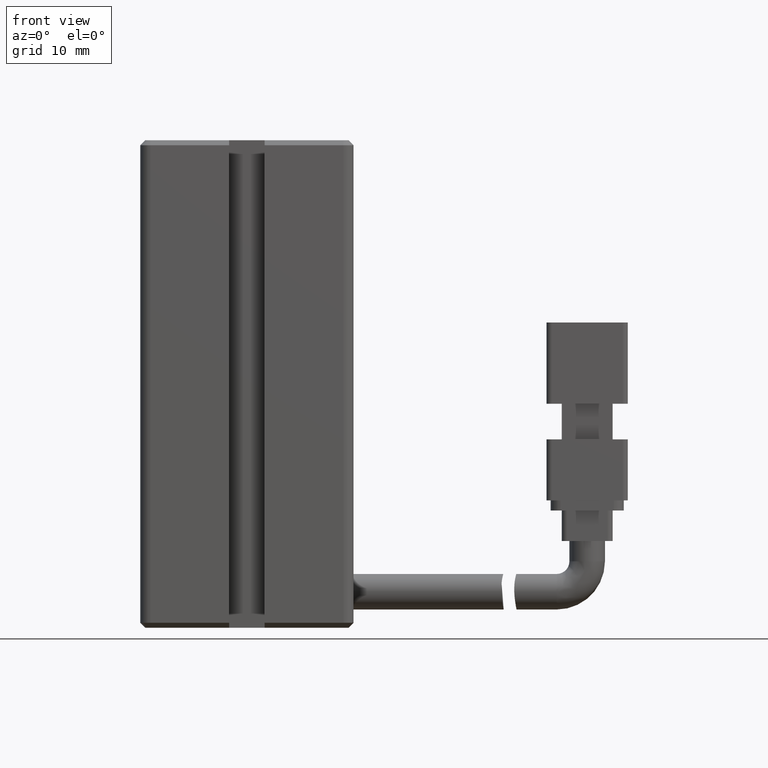
[diagram: clean part render]
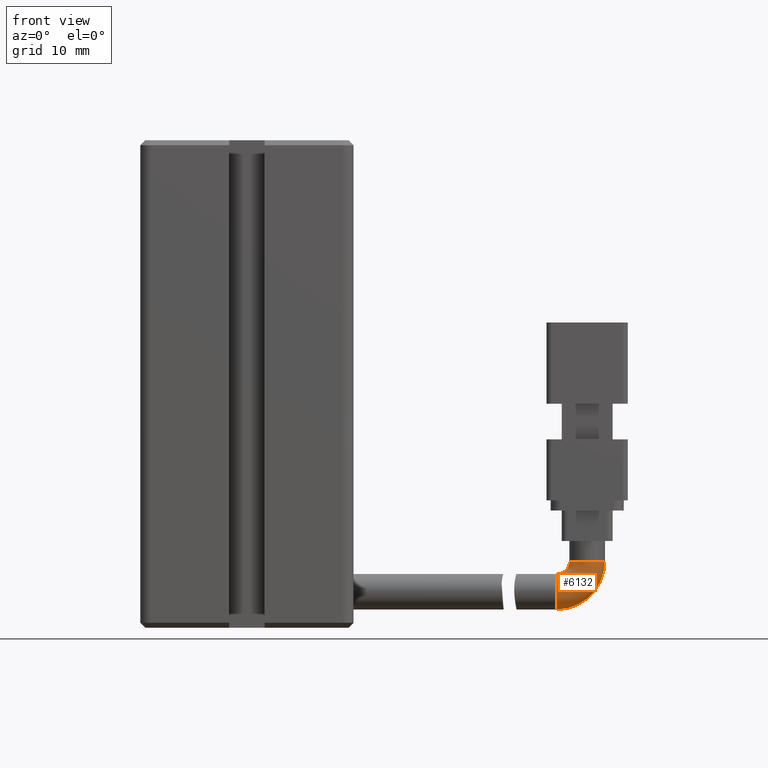
[diagram: same view with one face highlighted and labeled with its STEP entity id]
A machine part, front view. The second image highlights one B-rep face of the part: STEP entity #6132.
In plain terms, the highlighted face is a freeform B-spline surface patch.
Its self-contained STEP definition (entity closure, byte-faithful):
#369 = DIRECTION ( 'NONE',  ( 0.0000000000000000000, 0.0000000000000000000, -1.000000000000000000 ) ) ;
#779 = EDGE_CURVE ( 'NONE', #21231, #28898, #19869, .T. ) ;
#1088 = CARTESIAN_POINT ( 'NONE',  ( 71.42537974683536100, 21.49073232304857600, -135.4500000000000200 ) ) ;
#2241 = EDGE_LOOP ( 'NONE', ( #24751, #35647, #19874, #2256 ) ) ;
#2256 = ORIENTED_EDGE ( 'NONE', *, *, #3331, .F. ) ;
#3110 = DIRECTION ( 'NONE',  ( -3.304235192336770000E-015, 1.000000000000000000, -5.551115123125780200E-017 ) ) ;
#3331 = EDGE_CURVE ( 'NONE', #28898, #31599, #11876, .T. ) ;
#3860 = AXIS2_PLACEMENT_3D ( 'NONE', #1088, #36657, #16160 ) ;
#3966 = CARTESIAN_POINT ( 'NONE',  ( 76.17537974683537500, 17.99073232304859000, -135.2324855787277900 ) ) ;
#4250 = CARTESIAN_POINT ( 'NONE',  ( 74.20786532556314800, 17.99073232304857600, -137.1999999999999600 ) ) ;
#4416 = CARTESIAN_POINT ( 'NONE',  ( 74.42537974683536100, 21.49073232304858600, -132.4500000000000200 ) ) ;
#6132 = ADVANCED_FACE ( 'NONE', ( #7350 ), #32851, .T. ) ;
#7350 = FACE_OUTER_BOUND ( 'NONE', #2241, .T. ) ;
#9941 = CARTESIAN_POINT ( 'NONE',  ( 71.42537974683536100, 21.49073232304857600, -137.1999999999999900 ) ) ;
#10622 = DIRECTION ( 'NONE',  ( 1.000000000000000000, 3.965082230804126700E-015, 0.0000000000000000000 ) ) ;
#10625 = CARTESIAN_POINT ( 'NONE',  ( 71.42537974683536100, 21.49073232304857600, -132.4500000000000200 ) ) ;
#10852 = AXIS2_PLACEMENT_3D ( 'NONE', #4416, #25382, #10622 ) ;
#11876 = CIRCLE ( 'NONE', #34218, 4.750000000000004400 ) ;
#12842 = CARTESIAN_POINT ( 'NONE',  ( 71.42537974683536100, 21.49073232304856900, -137.2000000000000200 ) ) ;
#13188 = CARTESIAN_POINT ( 'NONE',  ( 72.15761279386896400, 17.99073232304857200, -133.6999999999999600 ) ) ;
#15765 = CARTESIAN_POINT ( 'NONE',  ( 76.17537974683536100, 21.49073232304859400, -132.4500000000000200 ) ) ;
#16160 = DIRECTION ( 'NONE',  ( 0.0000000000000000000, 3.965082230804126700E-015, -1.000000000000000000 ) ) ;
#16192 = CARTESIAN_POINT ( 'NONE',  ( 71.42537974683536100, 21.49073232304857600, -133.6999999999999900 ) ) ;
#18006 = VERTEX_POINT ( 'NONE', #32366 ) ;
#18324 = CARTESIAN_POINT ( 'NONE',  ( 71.42537974683536100, 21.49073232304857600, -132.4500000000000200 ) ) ;
#19337 = CARTESIAN_POINT ( 'NONE',  ( 71.42537974683534700, 17.99073232304857600, -137.1999999999999900 ) ) ;
#19869 = CIRCLE ( 'NONE', #10852, 1.750000000000001600 ) ;
#19874 = ORIENTED_EDGE ( 'NONE', *, *, #28870, .T. ) ;
#21231 = VERTEX_POINT ( 'NONE', #27609 ) ;
#21807 = CARTESIAN_POINT ( 'NONE',  ( 72.15761279386896400, 21.49073232304858300, -133.6999999999999900 ) ) ;
#21854 = CARTESIAN_POINT ( 'NONE',  ( 76.17537974683536100, 21.49073232304859400, -132.4500000000000200 ) ) ;
#24739 = CARTESIAN_POINT ( 'NONE',  ( 76.17537974683536100, 21.49073232304859400, -135.2324855787277900 ) ) ;
#24751 = ORIENTED_EDGE ( 'NONE', *, *, #779, .F. ) ;
#25090 = CARTESIAN_POINT ( 'NONE',  ( 71.42537974683534700, 17.99073232304857600, -133.6999999999999900 ) ) ;
#25382 = DIRECTION ( 'NONE',  ( 2.143131898507857500E-016, 5.551115123125850500E-017, 1.000000000000000000 ) ) ;
#27609 = CARTESIAN_POINT ( 'NONE',  ( 72.67537974683536100, 21.49073232304857900, -132.4500000000000200 ) ) ;
#28870 = EDGE_CURVE ( 'NONE', #18006, #31599, #38100, .T. ) ;
#28898 = VERTEX_POINT ( 'NONE', #15765 ) ;
#31232 = CARTESIAN_POINT ( 'NONE',  ( 74.20786532556314800, 21.49073232304858600, -137.1999999999999900 ) ) ;
#31278 = DIRECTION ( 'NONE',  ( -3.304235192336770000E-015, 1.000000000000000000, -5.551115123125780200E-017 ) ) ;
#31535 = DIRECTION ( 'NONE',  ( 0.0000000000000000000, 0.0000000000000000000, -1.000000000000000000 ) ) ;
#31599 = VERTEX_POINT ( 'NONE', #12842 ) ;
#32366 = CARTESIAN_POINT ( 'NONE',  ( 71.42537974683536100, 21.49073232304856900, -133.7000000000000200 ) ) ;
#32851 =( BOUNDED_SURFACE ( )  B_SPLINE_SURFACE ( 3, 3, ( 
 ( #21854, #24739, #31232, #9941 ),
 ( #37091, #3966, #4250, #19337 ),
 ( #33708, #34074, #13188, #25090 ),
 ( #33824, #33935, #21807, #16192 ) ),
 .UNSPECIFIED., .F., .F., .F. ) 
 B_SPLINE_SURFACE_WITH_KNOTS ( ( 4, 4 ),
 ( 4, 4 ),
 ( 0.0000000000000000000, 1.000000000000000000 ),
 ( 0.0000000000000000000, 1.000000000000000000 ),
 .UNSPECIFIED. ) 
 GEOMETRIC_REPRESENTATION_ITEM ( )  RATIONAL_B_SPLINE_SURFACE ( (
 ( 1.000000000000000000, 0.8047378541243649400, 0.8047378541243649400, 1.000000000000000000),
 ( 0.3333333333333332000, 0.2682459513747881800, 0.2682459513747881800, 0.3333333333333332000),
 ( 0.3333333333333332000, 0.2682459513747881800, 0.2682459513747881800, 0.3333333333333332000),
 ( 1.000000000000000000, 0.8047378541243649400, 0.8047378541243649400, 1.000000000000000000) ) ) 
 REPRESENTATION_ITEM ( '' )  SURFACE ( )  );
#33708 = CARTESIAN_POINT ( 'NONE',  ( 72.67537974683537500, 17.99073232304857600, -132.4500000000000200 ) ) ;
#33824 = CARTESIAN_POINT ( 'NONE',  ( 72.67537974683536100, 21.49073232304857900, -132.4500000000000200 ) ) ;
#33935 = CARTESIAN_POINT ( 'NONE',  ( 72.67537974683536100, 21.49073232304858300, -133.1822330470336300 ) ) ;
#34074 = CARTESIAN_POINT ( 'NONE',  ( 72.67537974683536100, 17.99073232304857200, -133.1822330470336100 ) ) ;
#34131 = EDGE_CURVE ( 'NONE', #21231, #18006, #35493, .T. ) ;
#34218 = AXIS2_PLACEMENT_3D ( 'NONE', #18324, #3110, #369 ) ;
#34705 = AXIS2_PLACEMENT_3D ( 'NONE', #10625, #31278, #31535 ) ;
#35493 = CIRCLE ( 'NONE', #34705, 1.250000000000001100 ) ;
#35647 = ORIENTED_EDGE ( 'NONE', *, *, #34131, .T. ) ;
#36657 = DIRECTION ( 'NONE',  ( 1.000000000000000000, 3.304235192336770000E-015, 8.579261317967046800E-031 ) ) ;
#37091 = CARTESIAN_POINT ( 'NONE',  ( 76.17537974683537500, 17.99073232304859000, -132.4500000000000200 ) ) ;
#38100 = CIRCLE ( 'NONE', #3860, 1.750000000000001600 ) ;